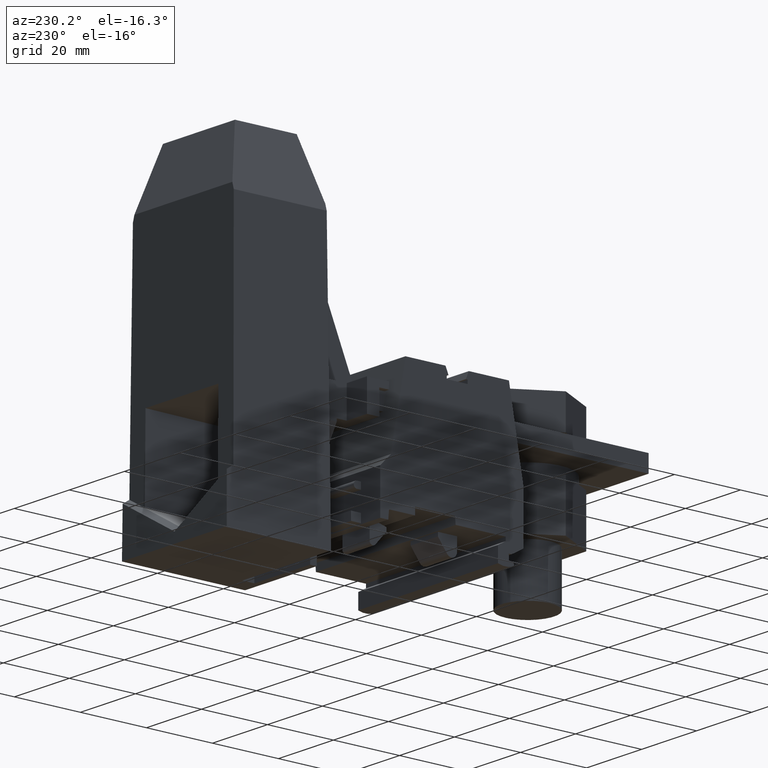
[diagram: clean part render]
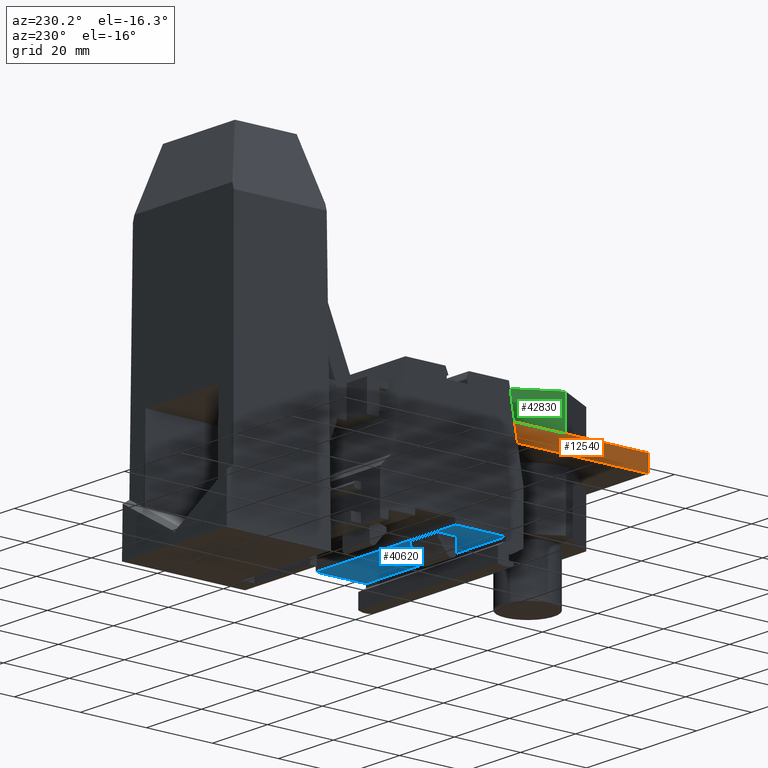
[diagram: same view with three faces highlighted in distinct colors, each labeled with its STEP entity id]
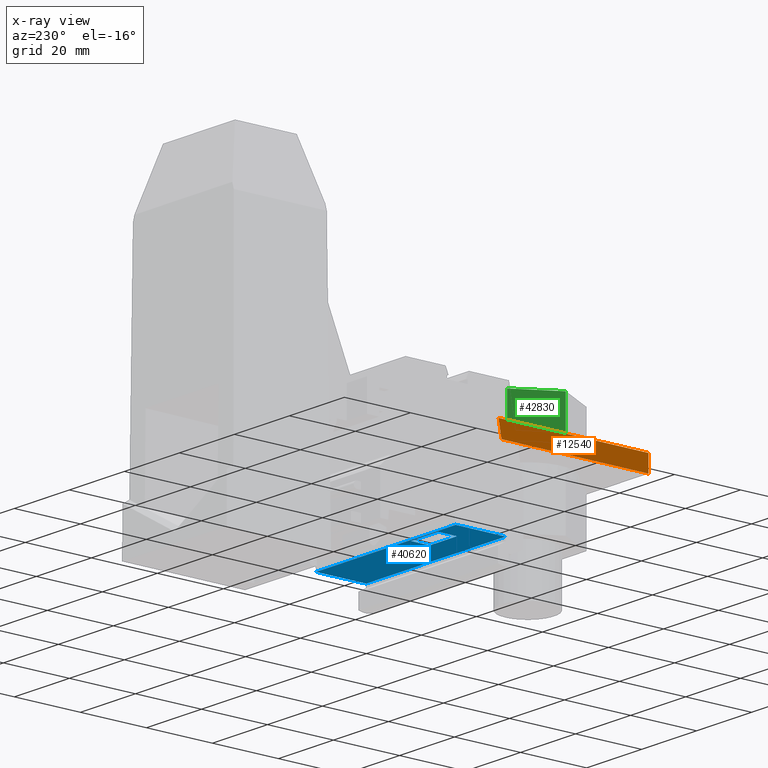
[diagram: x-ray of the same camera — body ghosted, the three highlighted faces saturated]
A machine part, auxiliary view with three faces highlighted in distinct colors.
The next image is the same camera in x-ray (body ghosted, the three faces saturated) — at least one of them is partly hidden behind the body in this view.
Their STEP definitions:

[orange] entity #12540 — the highlighted planar face has unit normal (-1, 0, -0).
#12150=CARTESIAN_POINT('',(-177.907569230969,757.956092873311,22.2));
#12160=DIRECTION('',(0.,0.,1.));
#12170=DIRECTION('',(-1.,0.,0.));
#12180=AXIS2_PLACEMENT_3D('',#12150,#12160,#12170);
#12190=PLANE('',#12180);
#12200=CARTESIAN_POINT('',(0.,762.956092873311,22.2));
#12210=DIRECTION('',(-1.,0.,0.));
#12220=VECTOR('',#12210,1.);
#12230=LINE('',#12200,#12220);
#12240=CARTESIAN_POINT('',(-178.107569230969,762.956092873311,22.2));
#12250=VERTEX_POINT('',#12240);
#12260=CARTESIAN_POINT('',(-223.583087001415,762.956092873311,22.2));
#12270=VERTEX_POINT('',#12260);
#12280=EDGE_CURVE('',#12250,#12270,#12230,.T.);
#12290=ORIENTED_EDGE('',*,*,#12280,.T.);
#12300=CARTESIAN_POINT('',(-178.107569230969,0.,22.2));
#12310=DIRECTION('',(-1.68850654576499E-29,1.,0.));
#12320=VECTOR('',#12310,1.);
#12330=LINE('',#12300,#12320);
#12340=CARTESIAN_POINT('',(-178.107569230969,757.956092873311,22.2));
#12350=VERTEX_POINT('',#12340);
#12360=EDGE_CURVE('',#12350,#12250,#12330,.T.);
#12370=ORIENTED_EDGE('',*,*,#12360,.T.);
#12380=CARTESIAN_POINT('',(0.,757.956092873311,22.2));
#12390=DIRECTION('',(1.,0.,0.));
#12400=VECTOR('',#12390,1.);
#12410=LINE('',#12380,#12400);
#12420=CARTESIAN_POINT('',(-222.701452097872,757.956092873311,22.2));
#12430=VERTEX_POINT('',#12420);
#12440=EDGE_CURVE('',#12430,#12350,#12410,.T.);
#12450=ORIENTED_EDGE('',*,*,#12440,.T.);
#12460=CARTESIAN_POINT('',(-218.209522264324,732.481092873311,22.2));
#12470=DIRECTION('',(-0.17364817766693,0.984807753012208,0.));
#12480=VECTOR('',#12470,1.);
#12490=LINE('',#12460,#12480);
#12500=EDGE_CURVE('',#12430,#12270,#12490,.T.);
#12510=ORIENTED_EDGE('',*,*,#12500,.F.);
#12520=EDGE_LOOP('',(#12510,#12450,#12370,#12290));
#12530=FACE_OUTER_BOUND('',#12520,.T.);
#12540=ADVANCED_FACE('',(#12530),#12190,.T.);

[blue] entity #40620 — the highlighted planar face has unit normal (-0, 0, 1).
#120=CARTESIAN_POINT('',(-241.073843008531,732.531092873311,27.6));
#130=VERTEX_POINT('',#120);
#320=CARTESIAN_POINT('',(-226.007569201959,732.531092873311,27.6));
#330=DIRECTION('',(1.,0.,0.));
#340=VECTOR('',#330,1.);
#350=LINE('',#320,#340);
#2430=CARTESIAN_POINT('',(-225.907569201959,732.531092873311,27.6));
#2440=VERTEX_POINT('',#2430);
#2470=EDGE_CURVE('',#130,#2440,#350,.T.);
#8990=CARTESIAN_POINT('',(-226.007569201959,732.531092873311,20.6));
#9000=DIRECTION('',(1.,0.,0.));
#9010=VECTOR('',#9000,1.);
#9020=LINE('',#8990,#9010);
#9030=CARTESIAN_POINT('',(-240.503816074819,732.531092873311,20.6));
#9040=VERTEX_POINT('',#9030);
#9050=CARTESIAN_POINT('',(-234.80756920196,732.531092873311,20.6));
#9060=VERTEX_POINT('',#9050);
#9070=EDGE_CURVE('',#9040,#9060,#9020,.T.);
#37740=CARTESIAN_POINT('',(-234.80756920196,732.531092873311,27.6));
#37750=DIRECTION('',(0.,0.,1.));
#37760=VECTOR('',#37750,1.);
#37770=LINE('',#37740,#37760);
#37780=CARTESIAN_POINT('',(-234.80756920196,732.531092873311,10.65));
#37790=VERTEX_POINT('',#37780);
#37800=EDGE_CURVE('',#37790,#9060,#37770,.T.);
#40140=CARTESIAN_POINT('',(-225.907569201959,732.531092873311,27.6));
#40150=DIRECTION('',(-0.,1.,0.));
#40160=DIRECTION('',(1.,0.,0.));
#40170=AXIS2_PLACEMENT_3D('',#40140,#40150,#40160);
#40180=PLANE('',#40170);
#40190=ORIENTED_EDGE('',*,*,#37800,.F.);
#40200=ORIENTED_EDGE('',*,*,#9070,.T.);
#40210=CARTESIAN_POINT('',(-240.503816074819,732.531092873311,27.6));
#40220=DIRECTION('',(0.,0.,-1.));
#40230=VECTOR('',#40220,1.);
#40240=LINE('',#40210,#40230);
#40250=CARTESIAN_POINT('',(-240.503816074819,732.531092873311,10.65));
#40260=VERTEX_POINT('',#40250);
#40270=EDGE_CURVE('',#9040,#40260,#40240,.T.);
#40280=ORIENTED_EDGE('',*,*,#40270,.F.);
#40290=CARTESIAN_POINT('',(-226.007569201959,732.531092873311,10.65));
#40300=DIRECTION('',(-1.,0.,0.));
#40310=VECTOR('',#40300,1.);
#40320=LINE('',#40290,#40310);
#40330=EDGE_CURVE('',#37790,#40260,#40320,.T.);
#40340=ORIENTED_EDGE('',*,*,#40330,.T.);
#40350=EDGE_LOOP('',(#40340,#40280,#40200,#40190));
#40360=FACE_BOUND('',#40350,.T.);
#40370=CARTESIAN_POINT('',(-241.073843008531,732.531092873311,27.6));
#40380=DIRECTION('',(0.,0.,1.));
#40390=VECTOR('',#40380,1.);
#40400=LINE('',#40370,#40390);
#40410=CARTESIAN_POINT('',(-241.073843008531,732.531092873311,-23.2));
#40420=VERTEX_POINT('',#40410);
#40430=EDGE_CURVE('',#40420,#130,#40400,.T.);
#40440=ORIENTED_EDGE('',*,*,#40430,.F.);
#40450=ORIENTED_EDGE('',*,*,#2470,.F.);
#40460=CARTESIAN_POINT('',(-225.907569201959,732.531092873311,27.6));
#40470=DIRECTION('',(0.,0.,-1.));
#40480=VECTOR('',#40470,1.);
#40490=LINE('',#40460,#40480);
#40500=CARTESIAN_POINT('',(-225.907569201959,732.531092873311,-23.2));
#40510=VERTEX_POINT('',#40500);
#40520=EDGE_CURVE('',#2440,#40510,#40490,.T.);
#40530=ORIENTED_EDGE('',*,*,#40520,.F.);
#40540=CARTESIAN_POINT('',(-226.007569201959,732.531092873311,-23.2));
#40550=DIRECTION('',(1.,0.,0.));
#40560=VECTOR('',#40550,1.);
#40570=LINE('',#40540,#40560);
#40580=EDGE_CURVE('',#40420,#40510,#40570,.T.);
#40590=ORIENTED_EDGE('',*,*,#40580,.T.);
#40600=EDGE_LOOP('',(#40590,#40530,#40450,#40440));
#40610=FACE_OUTER_BOUND('',#40600,.T.);
#40620=ADVANCED_FACE('',(#40360,#40610),#40180,.F.);

[green] entity #42830 — the highlighted planar face has unit normal (0.866, -0.5, 0).
#15180=CARTESIAN_POINT('',(-204.107569230969,765.556092873312,
12.5923048454132));
#15190=VERTEX_POINT('',#15180);
#15220=CARTESIAN_POINT('',(-198.107569230969,765.556092873312,
16.056406460551));
#15230=DIRECTION('',(-0.866025403784439,-1.14450510812518E-29,-0.5));
#15240=VECTOR('',#15230,1.);
#15250=LINE('',#15220,#15240);
#15260=CARTESIAN_POINT('',(-198.107569230969,765.556092873312,
16.056406460551));
#15270=VERTEX_POINT('',#15260);
#15280=EDGE_CURVE('',#15270,#15190,#15250,.T.);
#40990=CARTESIAN_POINT('',(-198.107569230969,775.556092873312,
16.056406460551));
#41000=VERTEX_POINT('',#40990);
#41030=CARTESIAN_POINT('',(-210.107569230969,775.556092873312,
9.1282032302755));
#41040=DIRECTION('',(0.866025403784439,1.14450510812518E-29,0.5));
#41050=VECTOR('',#41040,1.);
#41060=LINE('',#41030,#41050);
#41070=CARTESIAN_POINT('',(-210.107569230969,775.556092873312,
9.1282032302755));
#41080=VERTEX_POINT('',#41070);
#41090=EDGE_CURVE('',#41080,#41000,#41060,.T.);
#41350=CARTESIAN_POINT('',(-210.107569230969,765.556092873312,
9.1282032302755));
#41360=VERTEX_POINT('',#41350);
#41390=EDGE_CURVE('',#15190,#41360,#15250,.T.);
#41620=CARTESIAN_POINT('',(-210.107569230969,730.556092873312,
9.1282032302755));
#41630=DIRECTION('',(9.80908925027372E-45,1.,-2.28901021625036E-29));
#41640=VECTOR('',#41630,1.);
#41650=LINE('',#41620,#41640);
#41660=EDGE_CURVE('',#41360,#41080,#41650,.T.);
#42660=CARTESIAN_POINT('',(-210.107569230969,765.556092873312,
9.1282032302755));
#42670=DIRECTION('',(0.5,-1.98234099679493E-29,-0.866025403784439));
#42680=DIRECTION('',(-0.866025403784439,-1.14450510812518E-29,-0.5));
#42690=AXIS2_PLACEMENT_3D('',#42660,#42670,#42680);
#42700=PLANE('',#42690);
#42710=ORIENTED_EDGE('',*,*,#15280,.F.);
#42720=ORIENTED_EDGE('',*,*,#41390,.F.);
#42730=ORIENTED_EDGE('',*,*,#41660,.F.);
#42740=ORIENTED_EDGE('',*,*,#41090,.F.);
#42750=CARTESIAN_POINT('',(-198.107569230969,730.556092873312,
16.056406460551));
#42760=DIRECTION('',(9.80908925027372E-45,1.,-2.28901021625036E-29));
#42770=VECTOR('',#42760,1.);
#42780=LINE('',#42750,#42770);
#42790=EDGE_CURVE('',#15270,#41000,#42780,.T.);
#42800=ORIENTED_EDGE('',*,*,#42790,.T.);
#42810=EDGE_LOOP('',(#42800,#42740,#42730,#42720,#42710));
#42820=FACE_OUTER_BOUND('',#42810,.T.);
#42830=ADVANCED_FACE('',(#42820),#42700,.F.);